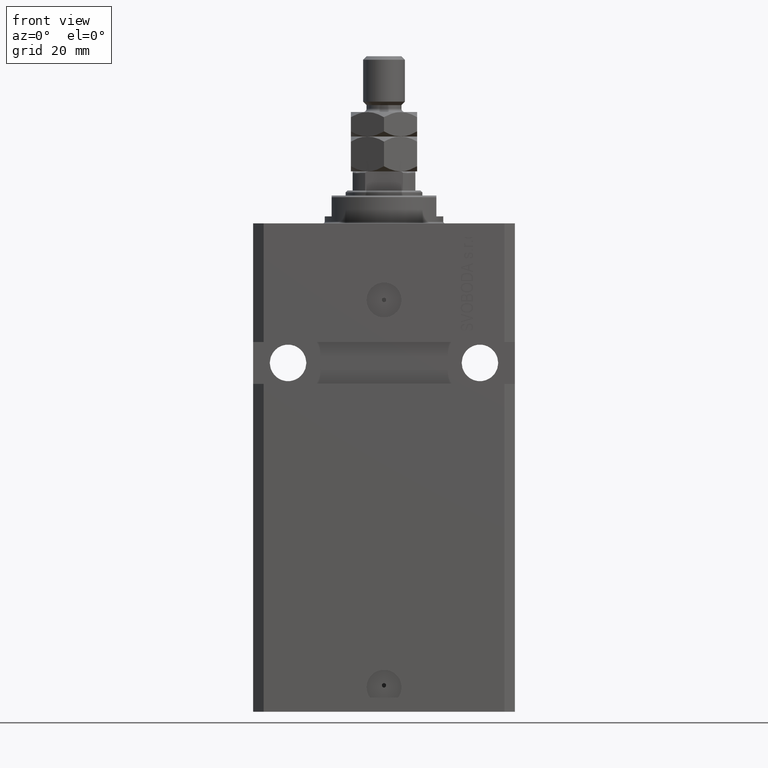
[diagram: clean part render]
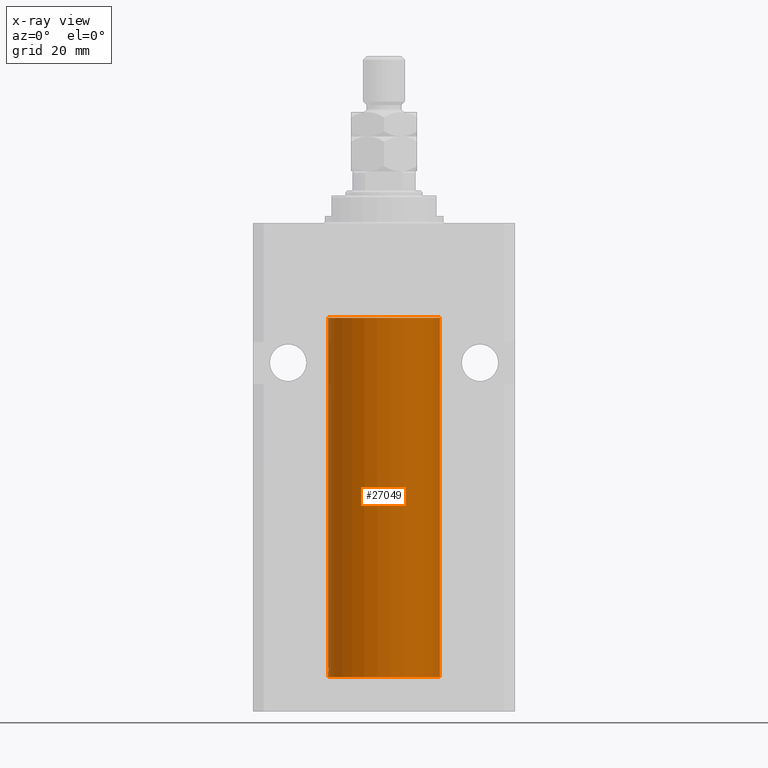
[diagram: x-ray — body ghosted, one internal face saturated and labeled with its STEP entity id]
A machine part, front view, then the same camera in x-ray: the body is ghosted and one INTERNAL B-rep face — a face not visible from any outside direction — is saturated and labeled: STEP entity #27049.
In plain terms, the highlighted cylindrical surface (partial cylindrical patch) has radius 16 mm, axis along (0, 0, 1).
Its self-contained STEP definition (entity closure, byte-faithful):
#569 = ORIENTED_EDGE ( 'NONE', *, *, #31531, .F. ) ;
#953 = CARTESIAN_POINT ( 'NONE',  ( -16.00000000000000711, -0.1631344205875858155, -128.6250000000001705 ) ) ;
#1116 = EDGE_CURVE ( 'NONE', #12034, #19995, #18710, .T. ) ;
#1870 = ORIENTED_EDGE ( 'NONE', *, *, #5876, .T. ) ;
#2292 = VECTOR ( 'NONE', #3604, 1000.000000000000000 ) ;
#2931 = FACE_OUTER_BOUND ( 'NONE', #26352, .T. ) ;
#3604 = DIRECTION ( 'NONE',  ( -0.000000000000000000, -0.000000000000000000, 1.000000000000000000 ) ) ;
#3854 = CARTESIAN_POINT ( 'NONE',  ( 0.000000000000000000, 0.000000000000000000, -130.0999999999999943 ) ) ;
#3945 = CARTESIAN_POINT ( 'NONE',  ( -16.00000000000000000, -1.314639473218082033E-14, -127.3749999999999858 ) ) ;
#4426 = CARTESIAN_POINT ( 'NONE',  ( -15.99069874693027948, -0.5575440858643410103, -127.6738242501145066 ) ) ;
#4879 = CARTESIAN_POINT ( 'NONE',  ( -16.00000000000000000, -1.314639473218082033E-14, -127.3749999999999858 ) ) ;
#5876 = EDGE_CURVE ( 'NONE', #37483, #12034, #26523, .T. ) ;
#5932 = EDGE_CURVE ( 'NONE', #27190, #20561, #42377, .T. ) ;
#6404 = DIRECTION ( 'NONE',  ( 1.000000000000000000, 0.000000000000000000, 0.000000000000000000 ) ) ;
#7079 = ORIENTED_EDGE ( 'NONE', *, *, #5932, .F. ) ;
#8341 = DIRECTION ( 'NONE',  ( 0.000000000000000000, 0.000000000000000000, 1.000000000000000000 ) ) ;
#11139 = CARTESIAN_POINT ( 'NONE',  ( 0.000000000000000000, 0.000000000000000000, -130.0999999999999943 ) ) ;
#11550 = CARTESIAN_POINT ( 'NONE',  ( 0.000000000000000000, 0.000000000000000000, -27.10000000000000142 ) ) ;
#11599 = CARTESIAN_POINT ( 'NONE',  ( -15.98778295664474491, -0.6251369050462284305, -127.8356432545786561 ) ) ;
#12034 = VERTEX_POINT ( 'NONE', #3945 ) ;
#13972 = AXIS2_PLACEMENT_3D ( 'NONE', #3854, #28318, #6404 ) ;
#14320 = DIRECTION ( 'NONE',  ( 1.000000000000000000, 0.000000000000000000, 0.000000000000000000 ) ) ;
#14829 = CARTESIAN_POINT ( 'NONE',  ( -15.98779367741636648, -0.6248626626677442619, -128.1653963198503732 ) ) ;
#15507 = CARTESIAN_POINT ( 'NONE',  ( -16.00000000000013145, 3.685127464164956467E-13, -128.6250000000034390 ) ) ;
#16030 = EDGE_CURVE ( 'NONE', #19995, #28323, #25510, .T. ) ;
#16150 = LINE ( 'NONE', #30433, #43499 ) ;
#18710 = LINE ( 'NONE', #33673, #18774 ) ;
#18774 = VECTOR ( 'NONE', #29759, 1000.000000000000000 ) ;
#19995 = VERTEX_POINT ( 'NONE', #41207 ) ;
#20366 = AXIS2_PLACEMENT_3D ( 'NONE', #11550, #42905, #14320 ) ;
#20561 = VERTEX_POINT ( 'NONE', #27426 ) ;
#21158 = LINE ( 'NONE', #35211, #2292 ) ;
#21316 = CARTESIAN_POINT ( 'NONE',  ( 16.00000000000000000, 0.000000000000000000, -27.10000000000000142 ) ) ;
#22416 = DIRECTION ( 'NONE',  ( 1.000000000000000000, 0.000000000000000000, 0.000000000000000000 ) ) ;
#23078 = ORIENTED_EDGE ( 'NONE', *, *, #33228, .T. ) ;
#24866 = CYLINDRICAL_SURFACE ( 'NONE', #13972, 16.00000000000000000 ) ;
#25510 = CIRCLE ( 'NONE', #20366, 16.00000000000000000 ) ;
#26352 = EDGE_LOOP ( 'NONE', ( #7079, #23078, #1870, #26599, #40252, #569 ) ) ;
#26523 = B_SPLINE_CURVE_WITH_KNOTS ( 'NONE', 3,
 ( #15507, #953, #32810, #36040, #14829, #11599, #4426, #29355, #39728, #4879 ),
 .UNSPECIFIED., .F., .F.,
 ( 4, 2, 2, 2, 4 ),
 ( 0.001954221322144799027, 0.002442665739568306450, 0.002931110156991814306, 0.003419554574415321728, 0.003907998991838829150 ),
 .UNSPECIFIED. ) ;
#26599 = ORIENTED_EDGE ( 'NONE', *, *, #1116, .T. ) ;
#27049 = ADVANCED_FACE ( 'NONE', ( #2931 ), #24866, .F. ) ;
#27190 = VERTEX_POINT ( 'NONE', #33592 ) ;
#27426 = CARTESIAN_POINT ( 'NONE',  ( 16.00000000000000000, 0.000000000000000000, -130.0999999999999943 ) ) ;
#28318 = DIRECTION ( 'NONE',  ( -0.000000000000000000, -0.000000000000000000, 1.000000000000000000 ) ) ;
#28323 = VERTEX_POINT ( 'NONE', #21316 ) ;
#29355 = CARTESIAN_POINT ( 'NONE',  ( -15.99707459521409625, -0.3269651631532018987, -127.4429184892856028 ) ) ;
#29759 = DIRECTION ( 'NONE',  ( -0.000000000000000000, -0.000000000000000000, 1.000000000000000000 ) ) ;
#30433 = CARTESIAN_POINT ( 'NONE',  ( 16.00000000000000000, 0.000000000000000000, -130.0999999999999943 ) ) ;
#30963 = CARTESIAN_POINT ( 'NONE',  ( -16.00000000000013145, 3.685127464164956467E-13, -128.6250000000034390 ) ) ;
#31531 = EDGE_CURVE ( 'NONE', #20561, #28323, #16150, .T. ) ;
#32810 = CARTESIAN_POINT ( 'NONE',  ( -15.99708815688950381, -0.3263115027448994510, -128.5574096919822580 ) ) ;
#33228 = EDGE_CURVE ( 'NONE', #27190, #37483, #21158, .T. ) ;
#33592 = CARTESIAN_POINT ( 'NONE',  ( -16.00000000000000000, 1.959434878635765131E-15, -130.0999999999999943 ) ) ;
#33673 = CARTESIAN_POINT ( 'NONE',  ( -16.00000000000000000, 1.959434878635765131E-15, -130.0999999999999943 ) ) ;
#34563 = DIRECTION ( 'NONE',  ( -0.000000000000000000, -0.000000000000000000, 1.000000000000000000 ) ) ;
#35211 = CARTESIAN_POINT ( 'NONE',  ( -16.00000000000000000, 1.959434878635765131E-15, -130.0999999999999943 ) ) ;
#35751 = AXIS2_PLACEMENT_3D ( 'NONE', #11139, #8341, #22416 ) ;
#36040 = CARTESIAN_POINT ( 'NONE',  ( -15.99071965633095793, -0.5569502390237165423, -128.3270950821868439 ) ) ;
#37483 = VERTEX_POINT ( 'NONE', #30963 ) ;
#39728 = CARTESIAN_POINT ( 'NONE',  ( -16.00000000000000000, -0.1651602165840369285, -127.3749999999999858 ) ) ;
#40252 = ORIENTED_EDGE ( 'NONE', *, *, #16030, .T. ) ;
#41207 = CARTESIAN_POINT ( 'NONE',  ( -16.00000000000000000, 1.959434878635765131E-15, -27.10000000000000142 ) ) ;
#42377 = CIRCLE ( 'NONE', #35751, 16.00000000000000000 ) ;
#42905 = DIRECTION ( 'NONE',  ( 0.000000000000000000, 0.000000000000000000, 1.000000000000000000 ) ) ;
#43499 = VECTOR ( 'NONE', #34563, 1000.000000000000000 ) ;